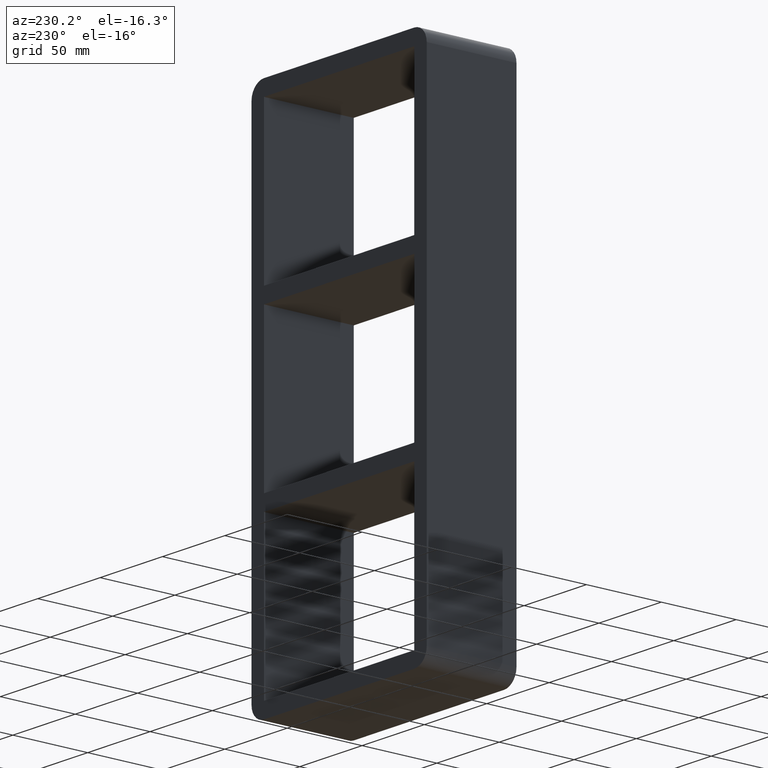
[diagram: clean part render]
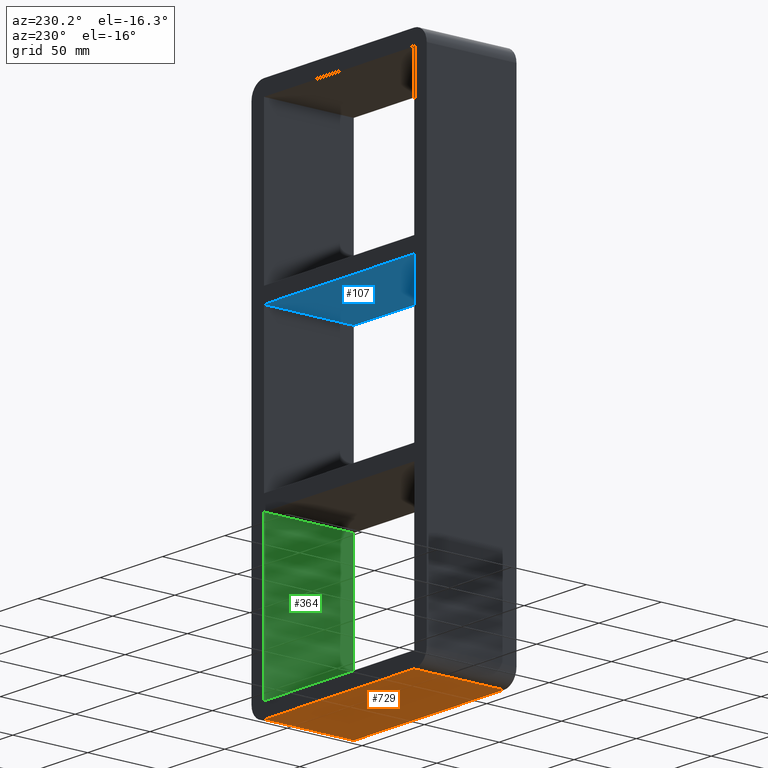
[diagram: same view with three faces highlighted in distinct colors, each labeled with its STEP entity id]
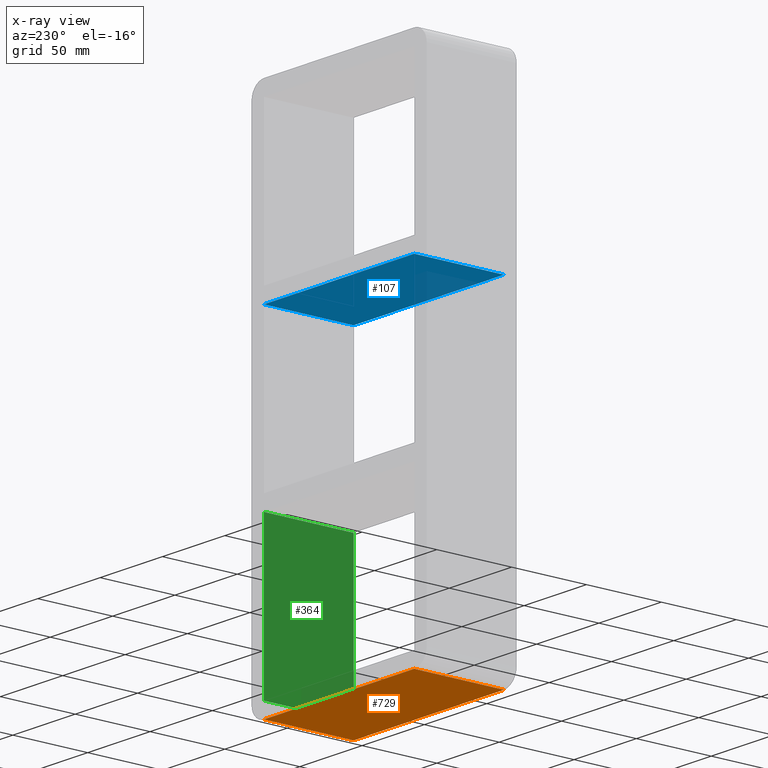
[diagram: x-ray of the same camera — body ghosted, the three highlighted faces saturated]
A machine part, auxiliary view with three faces highlighted in distinct colors.
The next image is the same camera in x-ray (body ghosted, the three faces saturated) — at least one of them is partly hidden behind the body in this view.
Their STEP definitions:

[orange] entity #729 — the highlighted planar face has unit normal (0, 0, -1).
#370=CARTESIAN_POINT('',(60.249999999999993,57.0,-171.50000000000003));
#371=VERTEX_POINT('',#370);
#389=CARTESIAN_POINT('',(60.249999999999993,-3.0,-171.50000000000003));
#390=VERTEX_POINT('',#389);
#398=CARTESIAN_POINT('',(60.249999999999993,-3.0,-171.50000000000003));
#399=DIRECTION('',(0.0,1.0,0.0));
#400=VECTOR('',#399,60.0);
#401=LINE('',#398,#400);
#402=EDGE_CURVE('',#390,#371,#401,.T.);
#455=CARTESIAN_POINT('',(-60.250000000000014,-3.0,-171.50000000000003));
#456=VERTEX_POINT('',#455);
#464=CARTESIAN_POINT('',(-60.25,-3.0,-171.50000000000003));
#465=DIRECTION('',(1.0,0.0,0.0));
#466=VECTOR('',#465,120.5);
#467=LINE('',#464,#466);
#468=EDGE_CURVE('',#456,#390,#467,.T.);
#564=CARTESIAN_POINT('',(-60.250000000000014,57.0,-171.50000000000003));
#565=VERTEX_POINT('',#564);
#573=CARTESIAN_POINT('',(-60.250000000000014,57.0,-171.50000000000003));
#574=DIRECTION('',(0.0,-1.0,0.0));
#575=VECTOR('',#574,60.0);
#576=LINE('',#573,#575);
#577=EDGE_CURVE('',#565,#456,#576,.T.);
#713=CARTESIAN_POINT('',(70.25,0.0,-171.50000000000003));
#714=DIRECTION('',(0.0,0.0,-1.0));
#715=DIRECTION('',(-1.0,0.0,0.0));
#716=AXIS2_PLACEMENT_3D('',#713,#714,#715);
#717=PLANE('',#716);
#718=ORIENTED_EDGE('',*,*,#402,.F.);
#719=ORIENTED_EDGE('',*,*,#468,.F.);
#720=ORIENTED_EDGE('',*,*,#577,.F.);
#721=CARTESIAN_POINT('',(60.25,57.0,-171.50000000000003));
#722=DIRECTION('',(-1.0,0.0,0.0));
#723=VECTOR('',#722,120.5);
#724=LINE('',#721,#723);
#725=EDGE_CURVE('',#371,#565,#724,.T.);
#726=ORIENTED_EDGE('',*,*,#725,.F.);
#727=EDGE_LOOP('',(#718,#719,#720,#726));
#728=FACE_OUTER_BOUND('',#727,.T.);
#729=ADVANCED_FACE('',(#728),#717,.T.);

[blue] entity #107 — the highlighted planar face has unit normal (0, 0, -1).
#68=CARTESIAN_POINT('',(60.249999999996362,-3.0,50.499999999990621));
#69=DIRECTION('',(0.0,0.0,-1.0));
#70=DIRECTION('',(-1.0,0.0,0.0));
#71=AXIS2_PLACEMENT_3D('',#68,#69,#70);
#72=PLANE('',#71);
#73=CARTESIAN_POINT('',(60.249999999996362,-3.0,50.499999999990621));
#74=VERTEX_POINT('',#73);
#75=CARTESIAN_POINT('',(-60.249999999999645,-3.0,50.499999999990521));
#76=VERTEX_POINT('',#75);
#77=CARTESIAN_POINT('',(60.249999999996362,-3.0,50.499999999990621));
#78=DIRECTION('',(-1.0,0.0,0.0));
#79=VECTOR('',#78,120.49999999999601);
#80=LINE('',#77,#79);
#81=EDGE_CURVE('',#74,#76,#80,.T.);
#82=ORIENTED_EDGE('',*,*,#81,.T.);
#83=CARTESIAN_POINT('',(-60.249999999999645,57.0,50.499999999990521));
#84=VERTEX_POINT('',#83);
#85=CARTESIAN_POINT('',(-60.250000000000014,57.000000000000007,50.499999999990521));
#86=DIRECTION('',(0.0,-1.0,0.0));
#87=VECTOR('',#86,60.000000000000007);
#88=LINE('',#85,#87);
#89=EDGE_CURVE('',#84,#76,#88,.T.);
#90=ORIENTED_EDGE('',*,*,#89,.F.);
#91=CARTESIAN_POINT('',(60.249999999996362,57.0,50.499999999990621));
#92=VERTEX_POINT('',#91);
#93=CARTESIAN_POINT('',(60.249999999996362,57.0,50.499999999990621));
#94=DIRECTION('',(-1.0,0.0,0.0));
#95=VECTOR('',#94,120.49999999999601);
#96=LINE('',#93,#95);
#97=EDGE_CURVE('',#92,#84,#96,.T.);
#98=ORIENTED_EDGE('',*,*,#97,.F.);
#99=CARTESIAN_POINT('',(60.249999999999986,-3.0,50.499999999990628));
#100=DIRECTION('',(0.0,1.0,0.0));
#101=VECTOR('',#100,60.000000000000007);
#102=LINE('',#99,#101);
#103=EDGE_CURVE('',#74,#92,#102,.T.);
#104=ORIENTED_EDGE('',*,*,#103,.F.);
#105=EDGE_LOOP('',(#82,#90,#98,#104));
#106=FACE_OUTER_BOUND('',#105,.T.);
#107=ADVANCED_FACE('',(#106),#72,.T.);

[green] entity #364 — the highlighted planar face has unit normal (1, 0, 0).
#246=CARTESIAN_POINT('',(60.249999999996362,-3.0,-60.500000000009393));
#247=VERTEX_POINT('',#246);
#264=CARTESIAN_POINT('',(60.249999999996362,57.0,-60.500000000009393));
#265=VERTEX_POINT('',#264);
#272=CARTESIAN_POINT('',(60.249999999999986,-3.0,-60.500000000009386));
#273=DIRECTION('',(0.0,1.0,0.0));
#274=VECTOR('',#273,60.000000000000007);
#275=LINE('',#272,#274);
#276=EDGE_CURVE('',#247,#265,#275,.T.);
#334=CARTESIAN_POINT('',(60.249999999999986,0.0,161.50000000000003));
#335=DIRECTION('',(1.0,0.0,0.0));
#336=DIRECTION('',(0.0,0.0,-1.0));
#337=AXIS2_PLACEMENT_3D('',#334,#335,#336);
#338=PLANE('',#337);
#339=ORIENTED_EDGE('',*,*,#276,.T.);
#340=CARTESIAN_POINT('',(60.249999999999986,57.0,-161.50000000000003));
#341=VERTEX_POINT('',#340);
#342=CARTESIAN_POINT('',(60.249999999999986,57.0,-161.5));
#343=DIRECTION('',(0.0,0.0,1.0));
#344=VECTOR('',#343,100.99999999999061);
#345=LINE('',#342,#344);
#346=EDGE_CURVE('',#341,#265,#345,.T.);
#347=ORIENTED_EDGE('',*,*,#346,.F.);
#348=CARTESIAN_POINT('',(60.249999999999986,-3.0,-161.50000000000003));
#349=VERTEX_POINT('',#348);
#350=CARTESIAN_POINT('',(60.249999999999986,57.0,-161.50000000000003));
#351=DIRECTION('',(0.0,-1.0,0.0));
#352=VECTOR('',#351,60.0);
#353=LINE('',#350,#352);
#354=EDGE_CURVE('',#341,#349,#353,.T.);
#355=ORIENTED_EDGE('',*,*,#354,.T.);
#356=CARTESIAN_POINT('',(60.249999999999986,-3.0,-60.500000000009393));
#357=DIRECTION('',(0.0,0.0,-1.0));
#358=VECTOR('',#357,100.99999999999061);
#359=LINE('',#356,#358);
#360=EDGE_CURVE('',#247,#349,#359,.T.);
#361=ORIENTED_EDGE('',*,*,#360,.F.);
#362=EDGE_LOOP('',(#339,#347,#355,#361));
#363=FACE_OUTER_BOUND('',#362,.T.);
#364=ADVANCED_FACE('',(#363),#338,.F.);